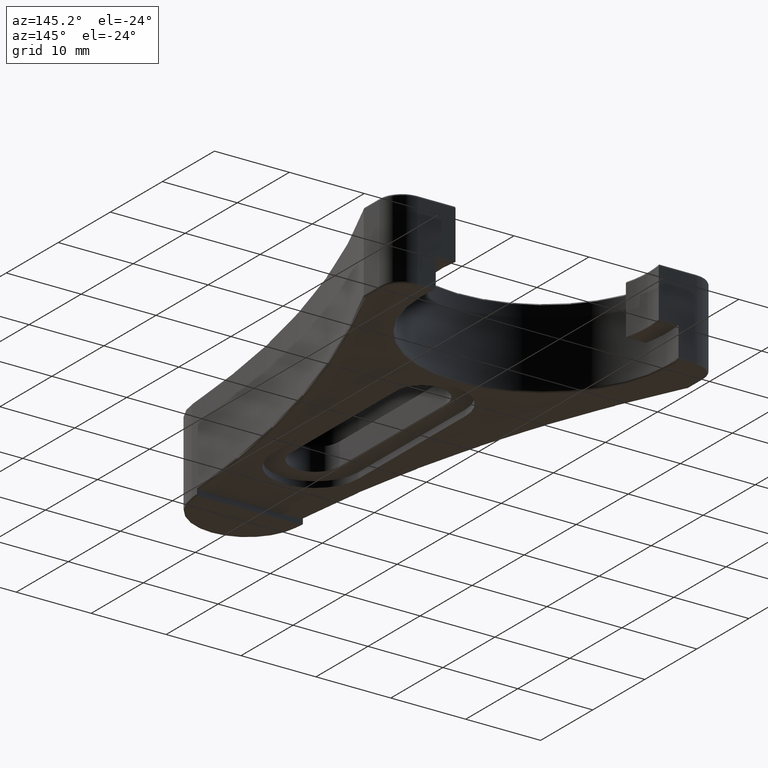
[diagram: clean part render]
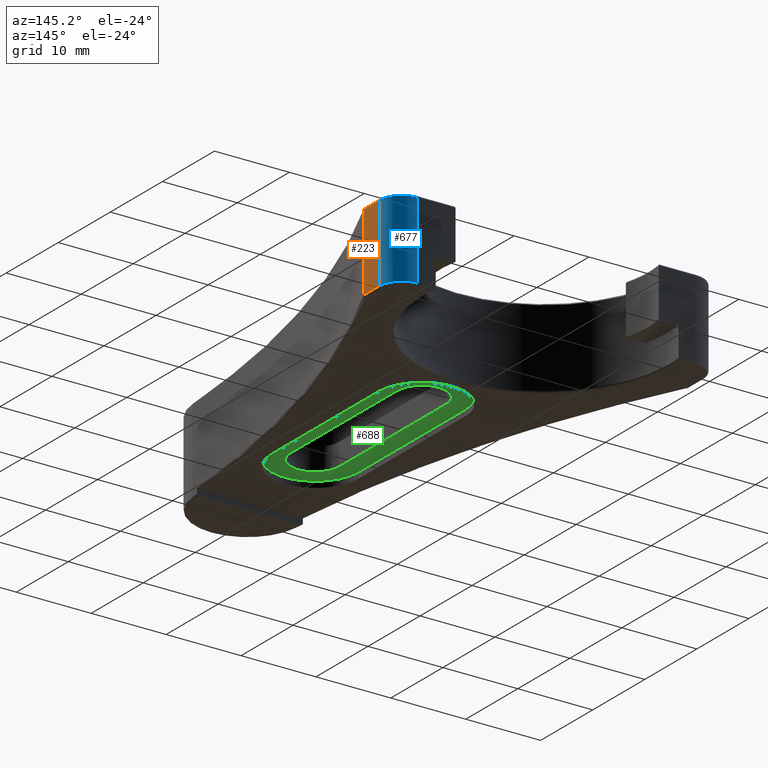
[diagram: same view with three faces highlighted in distinct colors, each labeled with its STEP entity id]
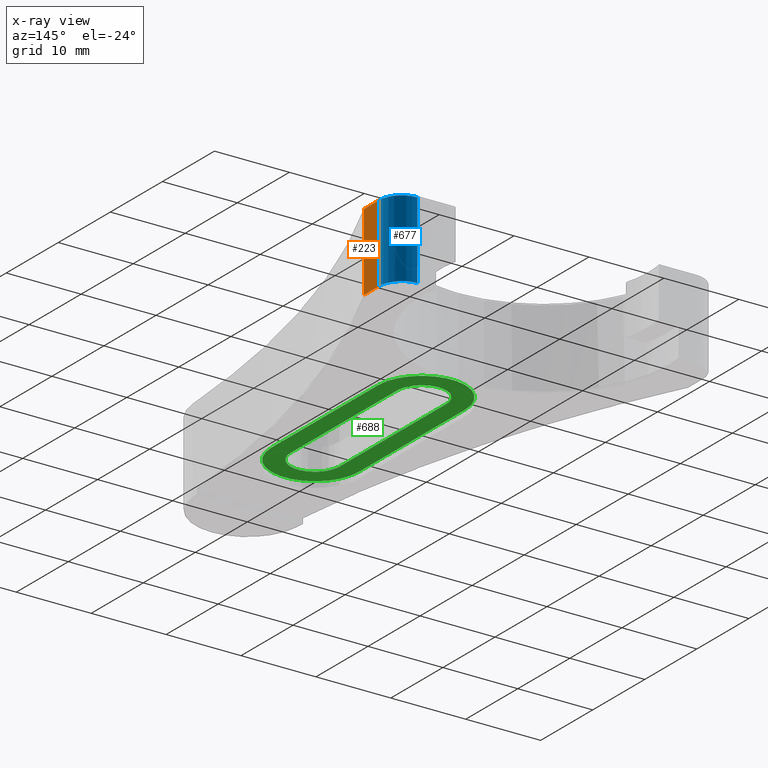
[diagram: x-ray of the same camera — body ghosted, the three highlighted faces saturated]
A machine part, auxiliary view with three faces highlighted in distinct colors.
The next image is the same camera in x-ray (body ghosted, the three faces saturated) — at least one of them is partly hidden behind the body in this view.
Their STEP definitions:

[orange] entity #223 — the highlighted planar face has unit normal (1, -0, 0).
#64 = PLANE ( 'NONE',  #689 ) ;
#83 = ORIENTED_EDGE ( 'NONE', *, *, #1773, .T. ) ;
#95 = CARTESIAN_POINT ( 'NONE',  ( 21.64999999999077600, 53.49999999999935300, 10.55000000000000100 ) ) ;
#163 = EDGE_CURVE ( 'NONE', #305, #312, #1501, .T. ) ;
#223 = ADVANCED_FACE ( 'NONE', ( #529 ), #64, .T. ) ;
#260 = EDGE_LOOP ( 'NONE', ( #1059, #576, #1232, #83 ) ) ;
#280 = VECTOR ( 'NONE', #1848, 1000.000000000000000 ) ;
#305 = VERTEX_POINT ( 'NONE', #95 ) ;
#312 = VERTEX_POINT ( 'NONE', #719 ) ;
#393 = CARTESIAN_POINT ( 'NONE',  ( 21.64999999999071500, -2.503784216992208100E-014, 10.80000000000000100 ) ) ;
#524 = DIRECTION ( 'NONE',  ( 1.000000000000000000, -1.156482317317913300E-015, 0.0000000000000000000 ) ) ;
#529 = FACE_OUTER_BOUND ( 'NONE', #260, .T. ) ;
#556 = VECTOR ( 'NONE', #980, 1000.000000000000000 ) ;
#576 = ORIENTED_EDGE ( 'NONE', *, *, #1386, .T. ) ;
#619 = EDGE_CURVE ( 'NONE', #1943, #979, #1084, .T. ) ;
#689 = AXIS2_PLACEMENT_3D ( 'NONE', #393, #524, #1140 ) ;
#719 = CARTESIAN_POINT ( 'NONE',  ( 21.64999999999077600, 53.49999999999935300, 0.2500000000000036600 ) ) ;
#811 = CARTESIAN_POINT ( 'NONE',  ( 21.64999999999071500, -2.503784216992208100E-014, 10.55000000000000100 ) ) ;
#925 = VECTOR ( 'NONE', #1186, 1000.000000000000000 ) ;
#945 = VECTOR ( 'NONE', #1447, 1000.000000000000000 ) ;
#979 = VERTEX_POINT ( 'NONE', #1723 ) ;
#980 = DIRECTION ( 'NONE',  ( -1.156482317317913300E-015, -1.000000000000000000, 0.0000000000000000000 ) ) ;
#1059 = ORIENTED_EDGE ( 'NONE', *, *, #619, .F. ) ;
#1084 = LINE ( 'NONE', #1494, #925 ) ;
#1140 = DIRECTION ( 'NONE',  ( 1.156482317317913300E-015, 1.000000000000000000, 0.0000000000000000000 ) ) ;
#1186 = DIRECTION ( 'NONE',  ( -0.0000000000000000000, -0.0000000000000000000, -1.000000000000000000 ) ) ;
#1191 = CARTESIAN_POINT ( 'NONE',  ( 21.64999999999077900, 56.49999999999924700, 0.2500000000000000000 ) ) ;
#1222 = CARTESIAN_POINT ( 'NONE',  ( 21.64999999999077900, 56.49999999999924700, 10.55000000000000100 ) ) ;
#1232 = ORIENTED_EDGE ( 'NONE', *, *, #163, .T. ) ;
#1351 = LINE ( 'NONE', #811, #556 ) ;
#1386 = EDGE_CURVE ( 'NONE', #1943, #305, #1351, .T. ) ;
#1447 = DIRECTION ( 'NONE',  ( -0.0000000000000000000, -0.0000000000000000000, -1.000000000000000000 ) ) ;
#1494 = CARTESIAN_POINT ( 'NONE',  ( 21.64999999999077900, 56.49999999999924700, 10.80000000000000100 ) ) ;
#1501 = LINE ( 'NONE', #1757, #945 ) ;
#1633 = LINE ( 'NONE', #1191, #280 ) ;
#1723 = CARTESIAN_POINT ( 'NONE',  ( 21.64999999999077900, 56.49999999999924700, 0.2500000000000036600 ) ) ;
#1757 = CARTESIAN_POINT ( 'NONE',  ( 21.64999999999077600, 53.49999999999935300, 10.80000000000000100 ) ) ;
#1773 = EDGE_CURVE ( 'NONE', #312, #979, #1633, .T. ) ;
#1848 = DIRECTION ( 'NONE',  ( 1.156482317317913300E-015, 1.000000000000000000, -0.0000000000000000000 ) ) ;
#1943 = VERTEX_POINT ( 'NONE', #1222 ) ;

[blue] entity #677 — the highlighted cylindrical surface (edge-blend (fillet) strip) has radius 3 mm, axis along (-0, -0, -1).
#41 = AXIS2_PLACEMENT_3D ( 'NONE', #892, #1645, #1986 ) ;
#333 = CARTESIAN_POINT ( 'NONE',  ( 18.64999999999077900, 59.49999999999925400, 0.2500000000000036600 ) ) ;
#347 = CARTESIAN_POINT ( 'NONE',  ( 18.64999999999077900, 56.49999999999924700, 10.55000000000000100 ) ) ;
#417 = CIRCLE ( 'NONE', #1713, 3.000000000000006200 ) ;
#619 = EDGE_CURVE ( 'NONE', #1943, #979, #1084, .T. ) ;
#671 = EDGE_CURVE ( 'NONE', #979, #1882, #417, .T. ) ;
#675 = LINE ( 'NONE', #1904, #1202 ) ;
#677 = ADVANCED_FACE ( 'NONE', ( #1373 ), #1431, .T. ) ;
#813 = DIRECTION ( 'NONE',  ( -0.0000000000000000000, -0.0000000000000000000, -1.000000000000000000 ) ) ;
#867 = EDGE_LOOP ( 'NONE', ( #1767, #1018, #1081, #1450 ) ) ;
#874 = DIRECTION ( 'NONE',  ( 1.000000000000000000, 0.0000000000000000000, 0.0000000000000000000 ) ) ;
#892 = CARTESIAN_POINT ( 'NONE',  ( 18.64999999999077900, 56.49999999999924700, 10.80000000000000100 ) ) ;
#903 = CIRCLE ( 'NONE', #958, 3.000000000000006200 ) ;
#925 = VECTOR ( 'NONE', #1186, 1000.000000000000000 ) ;
#958 = AXIS2_PLACEMENT_3D ( 'NONE', #347, #1880, #1736 ) ;
#979 = VERTEX_POINT ( 'NONE', #1723 ) ;
#1018 = ORIENTED_EDGE ( 'NONE', *, *, #671, .T. ) ;
#1081 = ORIENTED_EDGE ( 'NONE', *, *, #1212, .F. ) ;
#1084 = LINE ( 'NONE', #1494, #925 ) ;
#1186 = DIRECTION ( 'NONE',  ( -0.0000000000000000000, -0.0000000000000000000, -1.000000000000000000 ) ) ;
#1202 = VECTOR ( 'NONE', #813, 1000.000000000000000 ) ;
#1212 = EDGE_CURVE ( 'NONE', #1233, #1882, #675, .T. ) ;
#1222 = CARTESIAN_POINT ( 'NONE',  ( 21.64999999999077900, 56.49999999999924700, 10.55000000000000100 ) ) ;
#1233 = VERTEX_POINT ( 'NONE', #1264 ) ;
#1237 = EDGE_CURVE ( 'NONE', #1233, #1943, #903, .T. ) ;
#1264 = CARTESIAN_POINT ( 'NONE',  ( 18.64999999999077900, 59.49999999999925400, 10.55000000000000100 ) ) ;
#1320 = DIRECTION ( 'NONE',  ( -0.0000000000000000000, 0.0000000000000000000, 1.000000000000000000 ) ) ;
#1373 = FACE_OUTER_BOUND ( 'NONE', #867, .T. ) ;
#1431 = CYLINDRICAL_SURFACE ( 'NONE', #41, 3.000000000000006200 ) ;
#1450 = ORIENTED_EDGE ( 'NONE', *, *, #1237, .T. ) ;
#1494 = CARTESIAN_POINT ( 'NONE',  ( 21.64999999999077900, 56.49999999999924700, 10.80000000000000100 ) ) ;
#1639 = CARTESIAN_POINT ( 'NONE',  ( 18.64999999999077900, 56.49999999999924700, 0.2500000000000002200 ) ) ;
#1645 = DIRECTION ( 'NONE',  ( -0.0000000000000000000, -0.0000000000000000000, -1.000000000000000000 ) ) ;
#1713 = AXIS2_PLACEMENT_3D ( 'NONE', #1639, #1320, #874 ) ;
#1723 = CARTESIAN_POINT ( 'NONE',  ( 21.64999999999077900, 56.49999999999924700, 0.2500000000000036600 ) ) ;
#1736 = DIRECTION ( 'NONE',  ( 1.000000000000000000, 0.0000000000000000000, 0.0000000000000000000 ) ) ;
#1767 = ORIENTED_EDGE ( 'NONE', *, *, #619, .T. ) ;
#1880 = DIRECTION ( 'NONE',  ( 0.0000000000000000000, -0.0000000000000000000, -1.000000000000000000 ) ) ;
#1882 = VERTEX_POINT ( 'NONE', #333 ) ;
#1904 = CARTESIAN_POINT ( 'NONE',  ( 18.64999999999077900, 59.49999999999925400, 10.80000000000000100 ) ) ;
#1943 = VERTEX_POINT ( 'NONE', #1222 ) ;
#1986 = DIRECTION ( 'NONE',  ( -1.000000000000000000, 0.0000000000000000000, 0.0000000000000000000 ) ) ;

[green] entity #688 — the highlighted planar face has unit normal (0, 0, 1).
#5 = VECTOR ( 'NONE', #1740, 1000.000000000000000 ) ;
#49 = DIRECTION ( 'NONE',  ( 1.000000000000000000, 0.0000000000000000000, 0.0000000000000000000 ) ) ;
#75 = LINE ( 'NONE', #929, #812 ) ;
#76 = FACE_OUTER_BOUND ( 'NONE', #762, .T. ) ;
#94 = ORIENTED_EDGE ( 'NONE', *, *, #443, .F. ) ;
#126 = CIRCLE ( 'NONE', #255, 5.800000000000069100 ) ;
#127 = EDGE_LOOP ( 'NONE', ( #1496, #1143, #1366, #1646 ) ) ;
#140 = DIRECTION ( 'NONE',  ( 0.0000000000000000000, 0.0000000000000000000, 1.000000000000000000 ) ) ;
#195 = LINE ( 'NONE', #758, #1353 ) ;
#255 = AXIS2_PLACEMENT_3D ( 'NONE', #439, #596, #913 ) ;
#267 = VERTEX_POINT ( 'NONE', #1934 ) ;
#282 = DIRECTION ( 'NONE',  ( 1.000000000000000000, 0.0000000000000000000, 0.0000000000000000000 ) ) ;
#299 = FACE_BOUND ( 'NONE', #127, .T. ) ;
#359 = CARTESIAN_POINT ( 'NONE',  ( 5.800000000000069100, 33.49999999999984400, 0.8000000000000000400 ) ) ;
#415 = LINE ( 'NONE', #687, #5 ) ;
#439 = CARTESIAN_POINT ( 'NONE',  ( 4.119968255446100100E-018, 33.49999999999933200, 0.8000000000000000400 ) ) ;
#440 = DIRECTION ( 'NONE',  ( 0.0000000000000000000, 0.0000000000000000000, 1.000000000000000000 ) ) ;
#443 = EDGE_CURVE ( 'NONE', #1189, #1691, #126, .T. ) ;
#453 = AXIS2_PLACEMENT_3D ( 'NONE', #1171, #1048, #575 ) ;
#528 = CIRCLE ( 'NONE', #1364, 3.250000000000027100 ) ;
#571 = EDGE_CURVE ( 'NONE', #698, #1120, #1806, .T. ) ;
#575 = DIRECTION ( 'NONE',  ( 1.000000000000000000, 0.0000000000000000000, -0.0000000000000000000 ) ) ;
#596 = DIRECTION ( 'NONE',  ( 0.0000000000000000000, 0.0000000000000000000, 1.000000000000000000 ) ) ;
#658 = EDGE_CURVE ( 'NONE', #1299, #267, #1332, .T. ) ;
#687 = CARTESIAN_POINT ( 'NONE',  ( -5.800000000000069100, 13.00000000000078900, 0.8000000000000000400 ) ) ;
#688 = ADVANCED_FACE ( 'NONE', ( #76, #299 ), #739, .F. ) ;
#693 = VERTEX_POINT ( 'NONE', #1653 ) ;
#698 = VERTEX_POINT ( 'NONE', #1521 ) ;
#739 = PLANE ( 'NONE',  #453 ) ;
#758 = CARTESIAN_POINT ( 'NONE',  ( 3.250000000000057300, 33.49999999999984400, 0.8000000000000000400 ) ) ;
#762 = EDGE_LOOP ( 'NONE', ( #1037, #1916, #94, #967 ) ) ;
#800 = DIRECTION ( 'NONE',  ( 0.0000000000000000000, 0.0000000000000000000, 1.000000000000000000 ) ) ;
#812 = VECTOR ( 'NONE', #1068, 1000.000000000000000 ) ;
#858 = DIRECTION ( 'NONE',  ( 2.792481693035964800E-015, 1.000000000000000000, 0.0000000000000000000 ) ) ;
#887 = CARTESIAN_POINT ( 'NONE',  ( 0.0000000000000000000, 13.00000000000078900, 0.8000000000000000400 ) ) ;
#913 = DIRECTION ( 'NONE',  ( 1.000000000000000000, 0.0000000000000000000, 0.0000000000000000000 ) ) ;
#929 = CARTESIAN_POINT ( 'NONE',  ( -3.250000000000057300, 33.49999999999984400, 0.8000000000000000400 ) ) ;
#967 = ORIENTED_EDGE ( 'NONE', *, *, #1549, .F. ) ;
#1004 = VECTOR ( 'NONE', #858, 1000.000000000000000 ) ;
#1037 = ORIENTED_EDGE ( 'NONE', *, *, #571, .F. ) ;
#1048 = DIRECTION ( 'NONE',  ( 0.0000000000000000000, 0.0000000000000000000, 1.000000000000000000 ) ) ;
#1068 = DIRECTION ( 'NONE',  ( 1.269309860470893100E-016, -1.000000000000000000, 0.0000000000000000000 ) ) ;
#1120 = VERTEX_POINT ( 'NONE', #1239 ) ;
#1143 = ORIENTED_EDGE ( 'NONE', *, *, #1201, .T. ) ;
#1167 = CARTESIAN_POINT ( 'NONE',  ( 4.119968255446100100E-018, 33.49999999999933200, 0.8000000000000000400 ) ) ;
#1171 = CARTESIAN_POINT ( 'NONE',  ( 0.0000000000000000000, 13.00000000000078900, 0.8000000000000000400 ) ) ;
#1189 = VERTEX_POINT ( 'NONE', #359 ) ;
#1201 = EDGE_CURVE ( 'NONE', #693, #1288, #528, .T. ) ;
#1239 = CARTESIAN_POINT ( 'NONE',  ( 5.800000000000011400, 13.00000000000078900, 0.8000000000000000400 ) ) ;
#1288 = VERTEX_POINT ( 'NONE', #1294 ) ;
#1294 = CARTESIAN_POINT ( 'NONE',  ( 3.249999999999999600, 13.00000000000078900, 0.7999999999999999300 ) ) ;
#1299 = VERTEX_POINT ( 'NONE', #1561 ) ;
#1309 = LINE ( 'NONE', #1810, #1004 ) ;
#1325 = EDGE_CURVE ( 'NONE', #1691, #698, #415, .T. ) ;
#1332 = CIRCLE ( 'NONE', #1832, 3.250000000000057300 ) ;
#1338 = DIRECTION ( 'NONE',  ( 2.771326528694783300E-015, 1.000000000000000000, -0.0000000000000000000 ) ) ;
#1353 = VECTOR ( 'NONE', #1338, 1000.000000000000000 ) ;
#1364 = AXIS2_PLACEMENT_3D ( 'NONE', #1413, #800, #49 ) ;
#1366 = ORIENTED_EDGE ( 'NONE', *, *, #1776, .T. ) ;
#1413 = CARTESIAN_POINT ( 'NONE',  ( 0.0000000000000000000, 13.00000000000078900, 0.8000000000000000400 ) ) ;
#1496 = ORIENTED_EDGE ( 'NONE', *, *, #1912, .T. ) ;
#1506 = DIRECTION ( 'NONE',  ( 1.000000000000000000, 0.0000000000000000000, 0.0000000000000000000 ) ) ;
#1521 = CARTESIAN_POINT ( 'NONE',  ( -5.800000000000069100, 13.00000000000078900, 0.8000000000000000400 ) ) ;
#1549 = EDGE_CURVE ( 'NONE', #1120, #1189, #1309, .T. ) ;
#1561 = CARTESIAN_POINT ( 'NONE',  ( 3.250000000000001800, 33.49999999999933200, 0.7999999999999999300 ) ) ;
#1615 = AXIS2_PLACEMENT_3D ( 'NONE', #887, #440, #282 ) ;
#1646 = ORIENTED_EDGE ( 'NONE', *, *, #658, .T. ) ;
#1653 = CARTESIAN_POINT ( 'NONE',  ( -3.250000000000027100, 13.00000000000078900, 0.8000000000000000400 ) ) ;
#1691 = VERTEX_POINT ( 'NONE', #1786 ) ;
#1740 = DIRECTION ( 'NONE',  ( -0.0000000000000000000, -1.000000000000000000, -0.0000000000000000000 ) ) ;
#1776 = EDGE_CURVE ( 'NONE', #1288, #1299, #195, .T. ) ;
#1786 = CARTESIAN_POINT ( 'NONE',  ( -5.800000000000069100, 33.49999999999984400, 0.8000000000000000400 ) ) ;
#1806 = CIRCLE ( 'NONE', #1615, 5.800000000000040700 ) ;
#1810 = CARTESIAN_POINT ( 'NONE',  ( 5.800000000000011400, 13.00000000000078900, 0.8000000000000000400 ) ) ;
#1832 = AXIS2_PLACEMENT_3D ( 'NONE', #1167, #140, #1506 ) ;
#1912 = EDGE_CURVE ( 'NONE', #267, #693, #75, .T. ) ;
#1916 = ORIENTED_EDGE ( 'NONE', *, *, #1325, .F. ) ;
#1934 = CARTESIAN_POINT ( 'NONE',  ( -3.250000000000000000, 33.49999999999933200, 0.7999999999999999300 ) ) ;